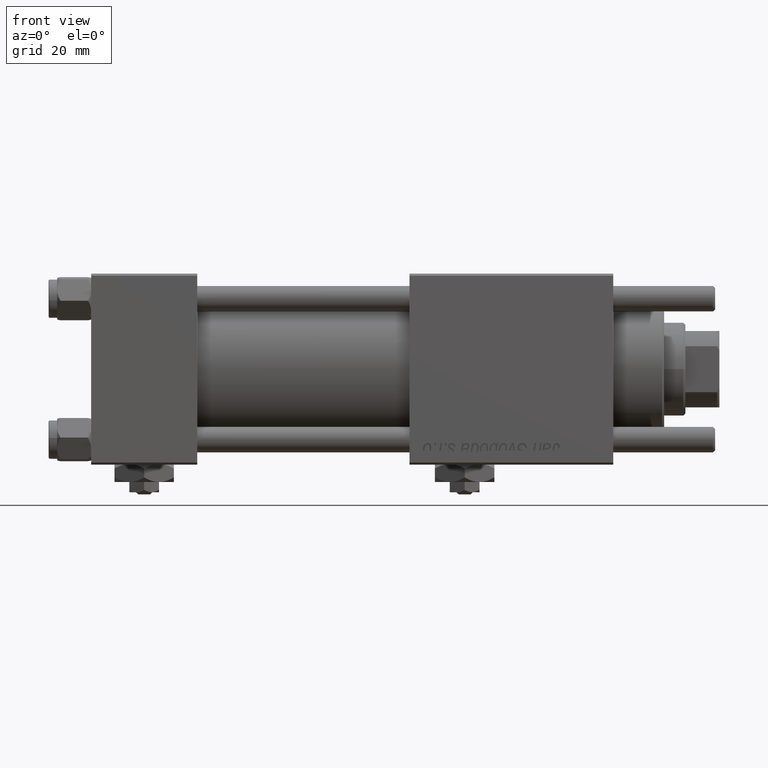
[diagram: clean part render]
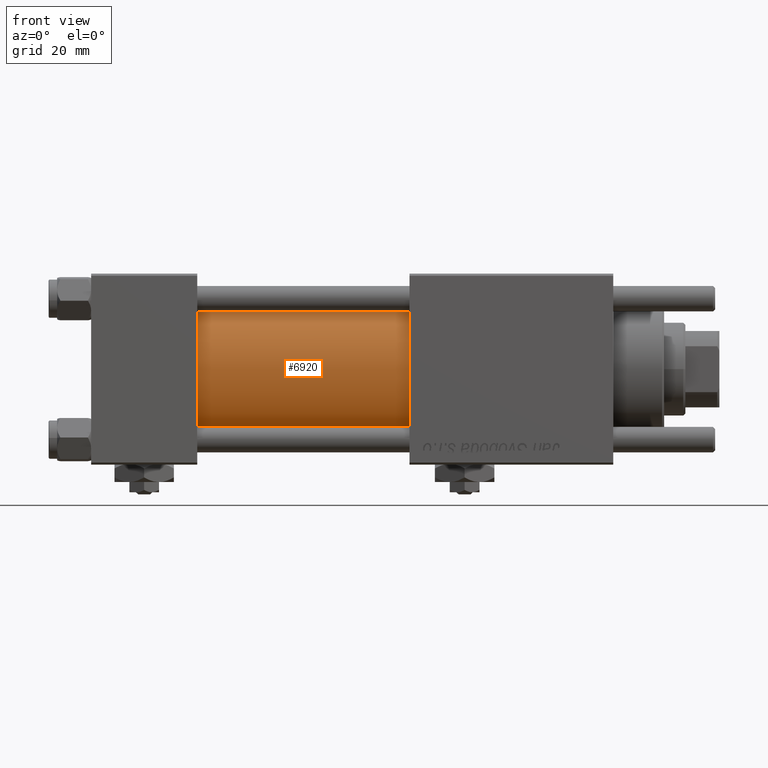
[diagram: same view with one face highlighted and labeled with its STEP entity id]
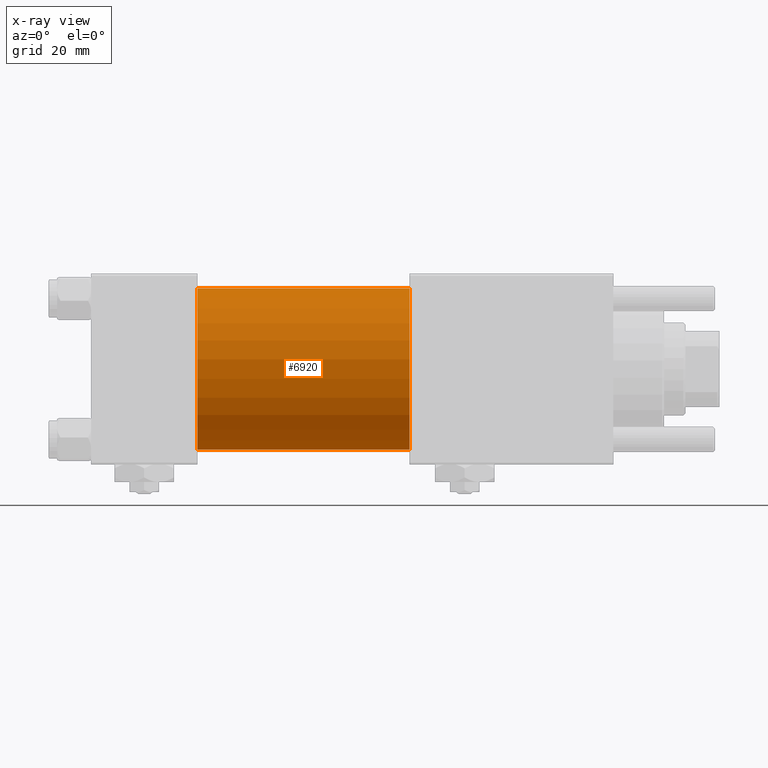
[diagram: x-ray of the same camera — body ghosted, the highlighted face saturated]
A machine part, front view. The second image highlights one B-rep face of the part: STEP entity #6920.
The next image is the same camera in x-ray: the body ghosted, the highlighted face saturated — about 0% of this face is hidden behind the body in this view.
In plain terms, the highlighted cylindrical surface (partial cylindrical patch) has radius 19 mm, axis along (-1, -0, -0).
Its self-contained STEP definition (entity closure, byte-faithful):
#6920 = ADVANCED_FACE ( 'NONE', ( #13602 ), #31734, .T. ) ;
#6928 = VERTEX_POINT ( 'NONE', #38245 ) ;
#6948 = VERTEX_POINT ( 'NONE', #42705 ) ;
#9124 = CARTESIAN_POINT ( 'NONE',  ( 75.00000000000001421, -2.602085213965210642E-15, 0.000000000000000000 ) ) ;
#10165 = CARTESIAN_POINT ( 'NONE',  ( 75.00000000000001421, -2.602085213965210642E-15, 19.00000000000000000 ) ) ;
#10790 = EDGE_CURVE ( 'NONE', #56721, #30757, #43498, .T. ) ;
#10974 = DIRECTION ( 'NONE',  ( -1.000000000000000000, -0.000000000000000000, -0.000000000000000000 ) ) ;
#11019 = DIRECTION ( 'NONE',  ( -1.000000000000000000, -0.000000000000000000, -0.000000000000000000 ) ) ;
#13453 = CARTESIAN_POINT ( 'NONE',  ( 75.00000000000001421, -2.752562955852396712E-16, -19.00000000000000000 ) ) ;
#13602 = FACE_OUTER_BOUND ( 'NONE', #28451, .T. ) ;
#13963 = CARTESIAN_POINT ( 'NONE',  ( 25.00000000000000000, -2.602085213965210642E-15, 0.000000000000000000 ) ) ;
#14511 = EDGE_CURVE ( 'NONE', #6948, #6928, #32204, .T. ) ;
#17724 = EDGE_CURVE ( 'NONE', #56721, #6948, #47869, .T. ) ;
#18360 = DIRECTION ( 'NONE',  ( 0.000000000000000000, 0.000000000000000000, 1.000000000000000000 ) ) ;
#21453 = CARTESIAN_POINT ( 'NONE',  ( 75.00000000000001421, -2.602085213965210642E-15, 0.000000000000000000 ) ) ;
#22778 = ORIENTED_EDGE ( 'NONE', *, *, #46677, .F. ) ;
#25917 = DIRECTION ( 'NONE',  ( 1.000000000000000000, 0.000000000000000000, 0.000000000000000000 ) ) ;
#27281 = DIRECTION ( 'NONE',  ( -1.000000000000000000, -0.000000000000000000, -0.000000000000000000 ) ) ;
#28451 = EDGE_LOOP ( 'NONE', ( #22778, #48360, #44777, #48258 ) ) ;
#29479 = VECTOR ( 'NONE', #10974, 1000.000000000000000 ) ;
#30757 = VERTEX_POINT ( 'NONE', #13453 ) ;
#31734 = CYLINDRICAL_SURFACE ( 'NONE', #46221, 19.00000000000000000 ) ;
#32096 = DIRECTION ( 'NONE',  ( 0.000000000000000000, 0.000000000000000000, 1.000000000000000000 ) ) ;
#32204 = CIRCLE ( 'NONE', #41673, 19.00000000000000000 ) ;
#38245 = CARTESIAN_POINT ( 'NONE',  ( 25.00000000000000000, -2.752562955852396712E-16, -19.00000000000000000 ) ) ;
#40426 = DIRECTION ( 'NONE',  ( 1.000000000000000000, -0.000000000000000000, 0.000000000000000000 ) ) ;
#41673 = AXIS2_PLACEMENT_3D ( 'NONE', #13963, #40426, #32096 ) ;
#42705 = CARTESIAN_POINT ( 'NONE',  ( 25.00000000000000000, -2.602085213965210642E-15, 19.00000000000000000 ) ) ;
#43498 = CIRCLE ( 'NONE', #46341, 19.00000000000000000 ) ;
#44332 = DIRECTION ( 'NONE',  ( 0.000000000000000000, 0.000000000000000000, -1.000000000000000000 ) ) ;
#44777 = ORIENTED_EDGE ( 'NONE', *, *, #17724, .T. ) ;
#46221 = AXIS2_PLACEMENT_3D ( 'NONE', #9124, #27281, #18360 ) ;
#46341 = AXIS2_PLACEMENT_3D ( 'NONE', #21453, #25917, #44332 ) ;
#46677 = EDGE_CURVE ( 'NONE', #30757, #6928, #47626, .T. ) ;
#47022 = CARTESIAN_POINT ( 'NONE',  ( 75.00000000000001421, -2.752562955852396712E-16, -19.00000000000000000 ) ) ;
#47626 = LINE ( 'NONE', #47022, #55043 ) ;
#47869 = LINE ( 'NONE', #57102, #29479 ) ;
#48258 = ORIENTED_EDGE ( 'NONE', *, *, #14511, .T. ) ;
#48360 = ORIENTED_EDGE ( 'NONE', *, *, #10790, .F. ) ;
#55043 = VECTOR ( 'NONE', #11019, 1000.000000000000000 ) ;
#56721 = VERTEX_POINT ( 'NONE', #10165 ) ;
#57102 = CARTESIAN_POINT ( 'NONE',  ( 75.00000000000001421, -2.602085213965210642E-15, 19.00000000000000000 ) ) ;